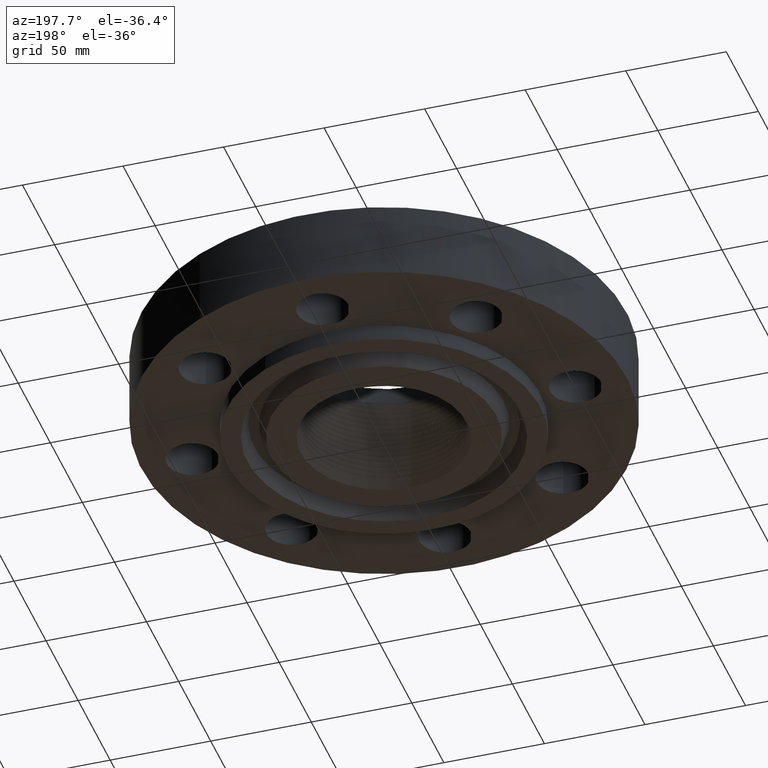
[diagram: clean part render]
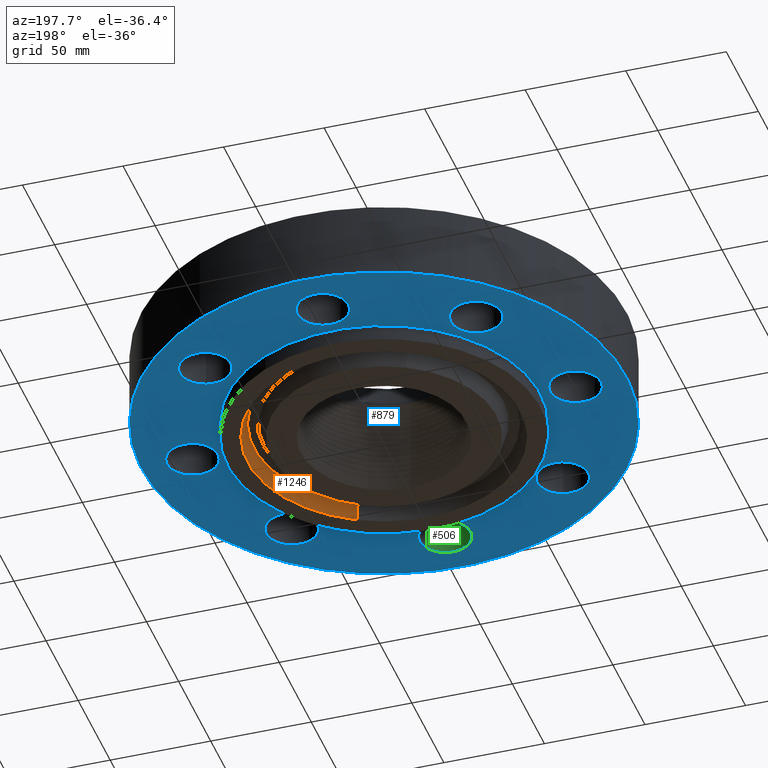
[diagram: same view with three faces highlighted in distinct colors, each labeled with its STEP entity id]
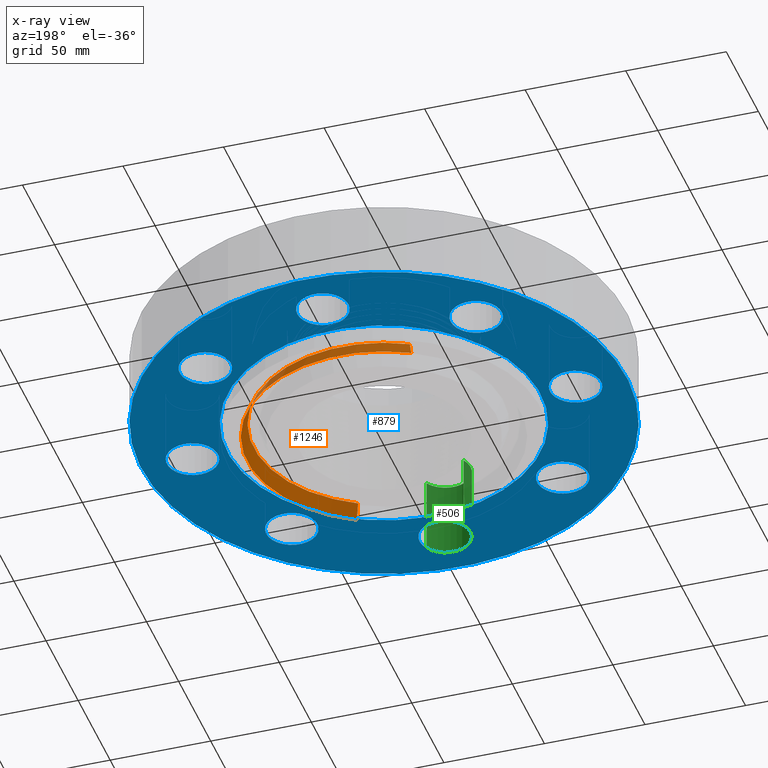
[diagram: x-ray of the same camera — body ghosted, the three highlighted faces saturated]
A machine part, auxiliary view with three faces highlighted in distinct colors.
The next image is the same camera in x-ray (body ghosted, the three faces saturated) — at least one of them is partly hidden behind the body in this view.
Their STEP definitions:

[orange] entity #1246 — the highlighted conical surface has half-angle 23 deg.
#385=AXIS2_PLACEMENT_3D('Circle Axis2P3D',#383,#384,$) ;
#1181=AXIS2_PLACEMENT_3D('Cone Axis2P3D',#1178,#1179,#1180) ;
#1202=AXIS2_PLACEMENT_3D('Circle Axis2P3D',#1200,#1201,$) ;
#378=CARTESIAN_POINT('Vertex',(1.2809770966,-2.34481284712,-0.312500000001)) ;
#380=CARTESIAN_POINT('Vertex',(-1.2809770966,2.34481284712,-0.312500000001)) ;
#383=CARTESIAN_POINT('Axis2P3D Location',(2.79741234551E-016,2.79741234551E-016,-0.312500000001)) ;
#1147=CARTESIAN_POINT('Vertex',(-1.22126292165,2.23550678306,-0.0190701156784)) ;
#1149=CARTESIAN_POINT('Vertex',(1.22126292165,-2.23550678306,-0.0190701156784)) ;
#1178=CARTESIAN_POINT('Axis2P3D Location',(0.,0.,-0.0190701156784)) ;
#1183=CARTESIAN_POINT('Line Origine',(-1.25112000913,2.29015981509,-0.16578505784)) ;
#1188=CARTESIAN_POINT('Line Origine',(1.25112000913,-2.29015981509,-0.16578505784)) ;
#1200=CARTESIAN_POINT('Axis2P3D Location',(0.,0.,-0.0190701156784)) ;
#384=DIRECTION('Axis2P3D Direction',(0.,0.,-0.0393700787402)) ;
#1179=DIRECTION('Axis2P3D Direction',(-0.,-0.,-0.0393700787402)) ;
#1180=DIRECTION('Axis2P3D XDirection',(-0.0188750212049,0.0345504945626,0.)) ;
#1184=DIRECTION('Vector Direction',(-0.00737505833565,0.0134999537303,-0.0362403485611)) ;
#1189=DIRECTION('Vector Direction',(0.00737505833565,-0.0134999537303,-0.0362403485611)) ;
#1201=DIRECTION('Axis2P3D Direction',(0.,0.,0.0393700787402)) ;
#1185=VECTOR('Line Direction',#1184,0.0393700787402) ;
#1190=VECTOR('Line Direction',#1189,0.0393700787402) ;
#1241=ORIENTED_EDGE('',*,*,#387,.T.) ;
#1242=ORIENTED_EDGE('',*,*,#1192,.T.) ;
#1243=ORIENTED_EDGE('',*,*,#1204,.T.) ;
#1244=ORIENTED_EDGE('',*,*,#1187,.F.) ;
#1246=ADVANCED_FACE('PartBody',(#1245),#1182,.F.) ;
#386=CIRCLE('generated circle',#385,2.67190000001) ;
#1203=CIRCLE('generated circle',#1202,2.54734640379) ;
#1182=CONICAL_SURFACE('Cone',#1181,2.54734640379,0.401425727959) ;
#387=EDGE_CURVE('',#381,#379,#386,.T.) ;
#1187=EDGE_CURVE('',#381,#1148,#1186,.F.) ;
#1192=EDGE_CURVE('',#379,#1150,#1191,.F.) ;
#1204=EDGE_CURVE('',#1150,#1148,#1203,.T.) ;
#1240=EDGE_LOOP('',(#1241,#1242,#1243,#1244)) ;
#1245=FACE_OUTER_BOUND('',#1240,.T.) ;
#1186=LINE('Line',#1183,#1185) ;
#1191=LINE('Line',#1188,#1190) ;
#379=VERTEX_POINT('',#378) ;
#381=VERTEX_POINT('',#380) ;
#1148=VERTEX_POINT('',#1147) ;
#1150=VERTEX_POINT('',#1149) ;

[blue] entity #879 — the highlighted planar face has unit normal (0, 0, -1).
#409=AXIS2_PLACEMENT_3D('Circle Axis2P3D',#407,#408,$) ;
#435=AXIS2_PLACEMENT_3D('Circle Axis2P3D',#433,#434,$) ;
#466=AXIS2_PLACEMENT_3D('Circle Axis2P3D',#464,#465,$) ;
#492=AXIS2_PLACEMENT_3D('Circle Axis2P3D',#490,#491,$) ;
#523=AXIS2_PLACEMENT_3D('Circle Axis2P3D',#521,#522,$) ;
#549=AXIS2_PLACEMENT_3D('Circle Axis2P3D',#547,#548,$) ;
#580=AXIS2_PLACEMENT_3D('Circle Axis2P3D',#578,#579,$) ;
#606=AXIS2_PLACEMENT_3D('Circle Axis2P3D',#604,#605,$) ;
#637=AXIS2_PLACEMENT_3D('Circle Axis2P3D',#635,#636,$) ;
#663=AXIS2_PLACEMENT_3D('Circle Axis2P3D',#661,#662,$) ;
#694=AXIS2_PLACEMENT_3D('Circle Axis2P3D',#692,#693,$) ;
#720=AXIS2_PLACEMENT_3D('Circle Axis2P3D',#718,#719,$) ;
#751=AXIS2_PLACEMENT_3D('Circle Axis2P3D',#749,#750,$) ;
#777=AXIS2_PLACEMENT_3D('Circle Axis2P3D',#775,#776,$) ;
#795=AXIS2_PLACEMENT_3D('Plane Axis2P3D',#792,#793,#794) ;
#799=AXIS2_PLACEMENT_3D('Circle Axis2P3D',#797,#798,$) ;
#808=AXIS2_PLACEMENT_3D('Circle Axis2P3D',#806,#807,$) ;
#817=AXIS2_PLACEMENT_3D('Circle Axis2P3D',#815,#816,$) ;
#826=AXIS2_PLACEMENT_3D('Circle Axis2P3D',#824,#825,$) ;
#835=AXIS2_PLACEMENT_3D('Circle Axis2P3D',#833,#834,$) ;
#844=AXIS2_PLACEMENT_3D('Circle Axis2P3D',#842,#843,$) ;
#402=CARTESIAN_POINT('Vertex',(2.79242019503,2.17187561447,0.)) ;
#407=CARTESIAN_POINT('Axis2P3D Location',(2.65165042946,2.65165042946,0.)) ;
#411=CARTESIAN_POINT('Vertex',(2.51088066389,3.13142524445,0.)) ;
#433=CARTESIAN_POINT('Axis2P3D Location',(2.65165042946,2.65165042946,0.)) ;
#459=CARTESIAN_POINT('Vertex',(-0.438791280947,-3.51028723071,0.)) ;
#464=CARTESIAN_POINT('Axis2P3D Location',(4.59242549682E-016,-3.75000000002,0.)) ;
#468=CARTESIAN_POINT('Vertex',(0.438791280947,-3.98971276932,0.)) ;
#490=CARTESIAN_POINT('Axis2P3D Location',(4.59242549682E-016,-3.75000000002,0.)) ;
#516=CARTESIAN_POINT('Vertex',(-2.17187561447,2.79242019503,0.)) ;
#521=CARTESIAN_POINT('Axis2P3D Location',(-2.65165042946,2.65165042946,0.)) ;
#525=CARTESIAN_POINT('Vertex',(-3.13142524445,2.51088066389,0.)) ;
#547=CARTESIAN_POINT('Axis2P3D Location',(-2.65165042946,2.65165042946,0.)) ;
#573=CARTESIAN_POINT('Vertex',(2.17187561447,-2.79242019503,0.)) ;
#578=CARTESIAN_POINT('Axis2P3D Location',(2.65165042946,-2.65165042946,0.)) ;
#582=CARTESIAN_POINT('Vertex',(3.13142524445,-2.51088066389,0.)) ;
#604=CARTESIAN_POINT('Axis2P3D Location',(2.65165042946,-2.65165042946,0.)) ;
#630=CARTESIAN_POINT('Vertex',(-3.51028723071,0.438791280947,0.)) ;
#635=CARTESIAN_POINT('Axis2P3D Location',(-3.75000000002,-6.88863824523E-016,0.)) ;
#639=CARTESIAN_POINT('Vertex',(-3.98971276932,-0.438791280947,0.)) ;
#661=CARTESIAN_POINT('Axis2P3D Location',(-3.75000000002,-6.88863824523E-016,0.)) ;
#687=CARTESIAN_POINT('Vertex',(3.51028723071,-0.438791280947,0.)) ;
#692=CARTESIAN_POINT('Axis2P3D Location',(3.75000000002,2.29621274841E-016,0.)) ;
#696=CARTESIAN_POINT('Vertex',(3.98971276932,0.438791280947,0.)) ;
#718=CARTESIAN_POINT('Axis2P3D Location',(3.75000000002,2.29621274841E-016,0.)) ;
#744=CARTESIAN_POINT('Vertex',(-2.79242019503,-2.17187561447,0.)) ;
#749=CARTESIAN_POINT('Axis2P3D Location',(-2.65165042946,-2.65165042946,0.)) ;
#753=CARTESIAN_POINT('Vertex',(-2.51088066389,-3.13142524445,0.)) ;
#775=CARTESIAN_POINT('Axis2P3D Location',(-2.65165042946,-2.65165042946,0.)) ;
#792=CARTESIAN_POINT('Axis2P3D Location',(0.,3.06250000001,0.)) ;
#797=CARTESIAN_POINT('Axis2P3D Location',(0.,0.,0.)) ;
#801=CARTESIAN_POINT('Vertex',(-2.27727130838,-4.168517169,5.59482469102E-016)) ;
#803=CARTESIAN_POINT('Vertex',(2.27727130838,4.168517169,5.59482469102E-016)) ;
#806=CARTESIAN_POINT('Axis2P3D Location',(0.,0.,0.)) ;
#815=CARTESIAN_POINT('Axis2P3D Location',(2.09805925913E-016,3.75000000002,0.)) ;
#819=CARTESIAN_POINT('Vertex',(0.438791280947,3.51028723071,0.)) ;
#821=CARTESIAN_POINT('Vertex',(-0.438791280947,3.98971276932,0.)) ;
#824=CARTESIAN_POINT('Axis2P3D Location',(1.22386790116E-016,3.75000000002,0.)) ;
#833=CARTESIAN_POINT('Axis2P3D Location',(0.,0.,0.)) ;
#837=CARTESIAN_POINT('Vertex',(1.46824071198,2.6875965958,1.39870617276E-016)) ;
#839=CARTESIAN_POINT('Vertex',(-1.46824071198,-2.6875965958,1.39870617276E-016)) ;
#842=CARTESIAN_POINT('Axis2P3D Location',(0.,0.,0.)) ;
#408=DIRECTION('Axis2P3D Direction',(0.,-0.,-0.0393700787402)) ;
#434=DIRECTION('Axis2P3D Direction',(0.,-0.,-0.0393700787402)) ;
#465=DIRECTION('Axis2P3D Direction',(-0.,0.,-0.0393700787402)) ;
#491=DIRECTION('Axis2P3D Direction',(-0.,0.,-0.0393700787402)) ;
#522=DIRECTION('Axis2P3D Direction',(0.,0.,-0.0393700787402)) ;
#548=DIRECTION('Axis2P3D Direction',(0.,0.,-0.0393700787402)) ;
#579=DIRECTION('Axis2P3D Direction',(-0.,0.,-0.0393700787402)) ;
#605=DIRECTION('Axis2P3D Direction',(-0.,0.,-0.0393700787402)) ;
#636=DIRECTION('Axis2P3D Direction',(0.,0.,-0.0393700787402)) ;
#662=DIRECTION('Axis2P3D Direction',(0.,0.,-0.0393700787402)) ;
#693=DIRECTION('Axis2P3D Direction',(0.,-0.,-0.0393700787402)) ;
#719=DIRECTION('Axis2P3D Direction',(0.,-0.,-0.0393700787402)) ;
#750=DIRECTION('Axis2P3D Direction',(0.,0.,-0.0393700787402)) ;
#776=DIRECTION('Axis2P3D Direction',(0.,0.,-0.0393700787402)) ;
#793=DIRECTION('Axis2P3D Direction',(0.,0.,-0.0393700787402)) ;
#794=DIRECTION('Axis2P3D XDirection',(0.0393700787402,0.,0.)) ;
#798=DIRECTION('Axis2P3D Direction',(0.,0.,-0.0393700787402)) ;
#807=DIRECTION('Axis2P3D Direction',(0.,0.,-0.0393700787402)) ;
#816=DIRECTION('Axis2P3D Direction',(0.,0.,-0.0393700787402)) ;
#825=DIRECTION('Axis2P3D Direction',(0.,0.,-0.0393700787402)) ;
#834=DIRECTION('Axis2P3D Direction',(0.,0.,-0.0393700787402)) ;
#843=DIRECTION('Axis2P3D Direction',(0.,0.,-0.0393700787402)) ;
#812=ORIENTED_EDGE('',*,*,#805,.T.) ;
#813=ORIENTED_EDGE('',*,*,#810,.T.) ;
#830=ORIENTED_EDGE('',*,*,#823,.F.) ;
#831=ORIENTED_EDGE('',*,*,#828,.F.) ;
#848=ORIENTED_EDGE('',*,*,#841,.F.) ;
#849=ORIENTED_EDGE('',*,*,#846,.F.) ;
#852=ORIENTED_EDGE('',*,*,#437,.F.) ;
#853=ORIENTED_EDGE('',*,*,#413,.F.) ;
#856=ORIENTED_EDGE('',*,*,#722,.F.) ;
#857=ORIENTED_EDGE('',*,*,#698,.F.) ;
#860=ORIENTED_EDGE('',*,*,#608,.F.) ;
#861=ORIENTED_EDGE('',*,*,#584,.F.) ;
#864=ORIENTED_EDGE('',*,*,#494,.F.) ;
#865=ORIENTED_EDGE('',*,*,#470,.F.) ;
#868=ORIENTED_EDGE('',*,*,#779,.F.) ;
#869=ORIENTED_EDGE('',*,*,#755,.F.) ;
#872=ORIENTED_EDGE('',*,*,#665,.F.) ;
#873=ORIENTED_EDGE('',*,*,#641,.F.) ;
#876=ORIENTED_EDGE('',*,*,#551,.F.) ;
#877=ORIENTED_EDGE('',*,*,#527,.F.) ;
#832=FACE_BOUND('',#829,.T.) ;
#850=FACE_BOUND('',#847,.T.) ;
#854=FACE_BOUND('',#851,.T.) ;
#858=FACE_BOUND('',#855,.T.) ;
#862=FACE_BOUND('',#859,.T.) ;
#866=FACE_BOUND('',#863,.T.) ;
#870=FACE_BOUND('',#867,.T.) ;
#874=FACE_BOUND('',#871,.T.) ;
#878=FACE_BOUND('',#875,.T.) ;
#879=ADVANCED_FACE('PartBody',(#814,#832,#850,#854,#858,#862,#866,#870,#874,#878),#796,.T.) ;
#410=CIRCLE('generated circle',#409,0.500000000002) ;
#436=CIRCLE('generated circle',#435,0.500000000002) ;
#467=CIRCLE('generated circle',#466,0.500000000002) ;
#493=CIRCLE('generated circle',#492,0.500000000002) ;
#524=CIRCLE('generated circle',#523,0.500000000002) ;
#550=CIRCLE('generated circle',#549,0.500000000002) ;
#581=CIRCLE('generated circle',#580,0.500000000002) ;
#607=CIRCLE('generated circle',#606,0.500000000002) ;
#638=CIRCLE('generated circle',#637,0.500000000002) ;
#664=CIRCLE('generated circle',#663,0.500000000002) ;
#695=CIRCLE('generated circle',#694,0.500000000002) ;
#721=CIRCLE('generated circle',#720,0.500000000002) ;
#752=CIRCLE('generated circle',#751,0.500000000002) ;
#778=CIRCLE('generated circle',#777,0.500000000002) ;
#800=CIRCLE('generated circle',#799,4.75000000002) ;
#809=CIRCLE('generated circle',#808,4.75000000002) ;
#818=CIRCLE('generated circle',#817,0.500000000002) ;
#827=CIRCLE('generated circle',#826,0.500000000002) ;
#836=CIRCLE('generated circle',#835,3.06250000001) ;
#845=CIRCLE('generated circle',#844,3.06250000001) ;
#413=EDGE_CURVE('',#403,#412,#410,.T.) ;
#437=EDGE_CURVE('',#412,#403,#436,.T.) ;
#470=EDGE_CURVE('',#460,#469,#467,.T.) ;
#494=EDGE_CURVE('',#469,#460,#493,.T.) ;
#527=EDGE_CURVE('',#517,#526,#524,.T.) ;
#551=EDGE_CURVE('',#526,#517,#550,.T.) ;
#584=EDGE_CURVE('',#574,#583,#581,.T.) ;
#608=EDGE_CURVE('',#583,#574,#607,.T.) ;
#641=EDGE_CURVE('',#631,#640,#638,.T.) ;
#665=EDGE_CURVE('',#640,#631,#664,.T.) ;
#698=EDGE_CURVE('',#688,#697,#695,.T.) ;
#722=EDGE_CURVE('',#697,#688,#721,.T.) ;
#755=EDGE_CURVE('',#745,#754,#752,.T.) ;
#779=EDGE_CURVE('',#754,#745,#778,.T.) ;
#805=EDGE_CURVE('',#802,#804,#800,.T.) ;
#810=EDGE_CURVE('',#804,#802,#809,.T.) ;
#823=EDGE_CURVE('',#820,#822,#818,.T.) ;
#828=EDGE_CURVE('',#822,#820,#827,.T.) ;
#841=EDGE_CURVE('',#838,#840,#836,.T.) ;
#846=EDGE_CURVE('',#840,#838,#845,.T.) ;
#811=EDGE_LOOP('',(#812,#813)) ;
#829=EDGE_LOOP('',(#830,#831)) ;
#847=EDGE_LOOP('',(#848,#849)) ;
#851=EDGE_LOOP('',(#852,#853)) ;
#855=EDGE_LOOP('',(#856,#857)) ;
#859=EDGE_LOOP('',(#860,#861)) ;
#863=EDGE_LOOP('',(#864,#865)) ;
#867=EDGE_LOOP('',(#868,#869)) ;
#871=EDGE_LOOP('',(#872,#873)) ;
#875=EDGE_LOOP('',(#876,#877)) ;
#814=FACE_OUTER_BOUND('',#811,.T.) ;
#796=PLANE('',#795) ;
#403=VERTEX_POINT('',#402) ;
#412=VERTEX_POINT('',#411) ;
#460=VERTEX_POINT('',#459) ;
#469=VERTEX_POINT('',#468) ;
#517=VERTEX_POINT('',#516) ;
#526=VERTEX_POINT('',#525) ;
#574=VERTEX_POINT('',#573) ;
#583=VERTEX_POINT('',#582) ;
#631=VERTEX_POINT('',#630) ;
#640=VERTEX_POINT('',#639) ;
#688=VERTEX_POINT('',#687) ;
#697=VERTEX_POINT('',#696) ;
#745=VERTEX_POINT('',#744) ;
#754=VERTEX_POINT('',#753) ;
#802=VERTEX_POINT('',#801) ;
#804=VERTEX_POINT('',#803) ;
#820=VERTEX_POINT('',#819) ;
#822=VERTEX_POINT('',#821) ;
#838=VERTEX_POINT('',#837) ;
#840=VERTEX_POINT('',#839) ;

[green] entity #506 — the highlighted cylindrical surface (edge-blend (fillet) strip) has radius 12.7 mm, axis along (-0, 0, -1).
#453=AXIS2_PLACEMENT_3D('Cylinder Axis2P3D',#450,#451,#452) ;
#492=AXIS2_PLACEMENT_3D('Circle Axis2P3D',#490,#491,$) ;
#497=AXIS2_PLACEMENT_3D('Circle Axis2P3D',#495,#496,$) ;
#450=CARTESIAN_POINT('Axis2P3D Location',(4.59242549682E-016,-3.75000000002,1.49606299213)) ;
#455=CARTESIAN_POINT('Line Origine',(-0.438791280947,-3.51028723071,0.750000000003)) ;
#459=CARTESIAN_POINT('Vertex',(-0.438791280947,-3.51028723071,0.)) ;
#461=CARTESIAN_POINT('Vertex',(-0.438791280947,-3.51028723071,1.50000000001)) ;
#468=CARTESIAN_POINT('Vertex',(0.438791280947,-3.98971276932,0.)) ;
#471=CARTESIAN_POINT('Line Origine',(0.438791280947,-3.98971276932,0.750000000003)) ;
#475=CARTESIAN_POINT('Vertex',(0.438791280947,-3.98971276932,1.50000000001)) ;
#490=CARTESIAN_POINT('Axis2P3D Location',(4.59242549682E-016,-3.75000000002,0.)) ;
#495=CARTESIAN_POINT('Axis2P3D Location',(4.59242549682E-016,-3.75000000002,1.50000000001)) ;
#451=DIRECTION('Axis2P3D Direction',(-0.,0.,-0.0393700787402)) ;
#452=DIRECTION('Axis2P3D XDirection',(0.0345504945626,-0.0188750212049,-0.)) ;
#456=DIRECTION('Vector Direction',(0.,0.,-0.0393700787402)) ;
#472=DIRECTION('Vector Direction',(0.,0.,-0.0393700787402)) ;
#491=DIRECTION('Axis2P3D Direction',(-0.,0.,-0.0393700787402)) ;
#496=DIRECTION('Axis2P3D Direction',(-0.,0.,-0.0393700787402)) ;
#457=VECTOR('Line Direction',#456,0.0393700787402) ;
#473=VECTOR('Line Direction',#472,0.0393700787402) ;
#501=ORIENTED_EDGE('',*,*,#477,.F.) ;
#502=ORIENTED_EDGE('',*,*,#494,.T.) ;
#503=ORIENTED_EDGE('',*,*,#463,.T.) ;
#504=ORIENTED_EDGE('',*,*,#499,.F.) ;
#506=ADVANCED_FACE('PartBody',(#505),#454,.F.) ;
#493=CIRCLE('generated circle',#492,0.500000000002) ;
#498=CIRCLE('generated circle',#497,0.500000000002) ;
#454=CYLINDRICAL_SURFACE('generated cylinder',#453,0.500000000002) ;
#463=EDGE_CURVE('',#460,#462,#458,.F.) ;
#477=EDGE_CURVE('',#469,#476,#474,.F.) ;
#494=EDGE_CURVE('',#469,#460,#493,.T.) ;
#499=EDGE_CURVE('',#476,#462,#498,.T.) ;
#500=EDGE_LOOP('',(#501,#502,#503,#504)) ;
#505=FACE_OUTER_BOUND('',#500,.T.) ;
#458=LINE('Line',#455,#457) ;
#474=LINE('Line',#471,#473) ;
#460=VERTEX_POINT('',#459) ;
#462=VERTEX_POINT('',#461) ;
#469=VERTEX_POINT('',#468) ;
#476=VERTEX_POINT('',#475) ;